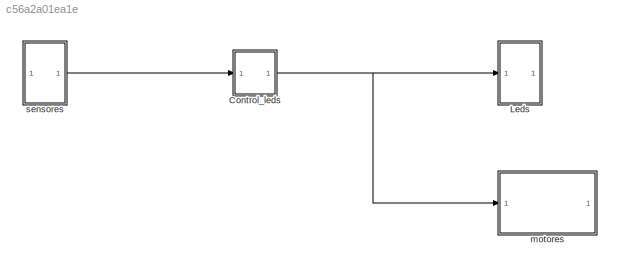
MODEL slx_c56a2a01ea1e
KIND model
CONFIG AbsTol = auto
CONFIG EnableMultiTasking = off
CONFIG FixedStep = auto
CONFIG MaxStep = auto
CONFIG MinStep = auto
CONFIG RelTol = 1e-3
CONFIG SampleTimeConstraint = Unconstrained
CONFIG SolverName = VariableStepAuto
CONFIG StartTime = 0.0
CONFIG StopTime = 10.0
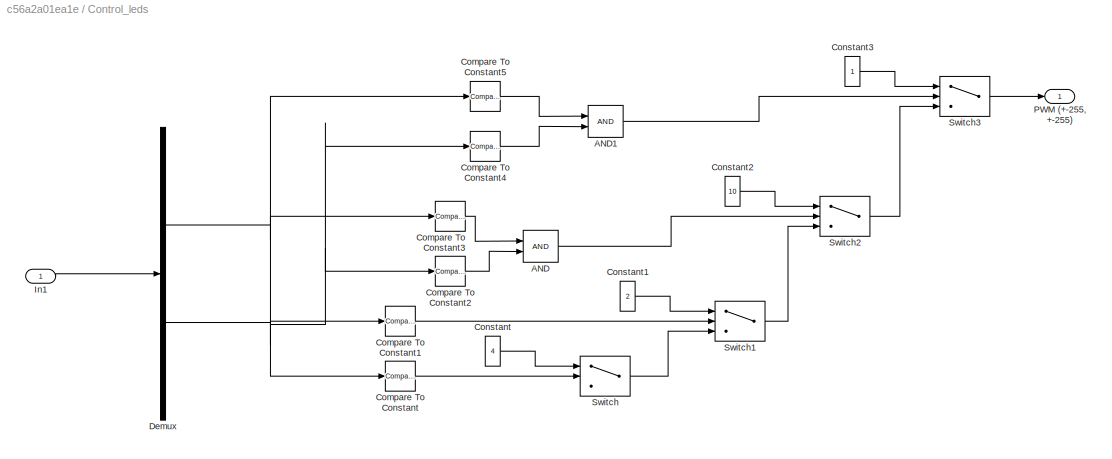
BLOCK [SubSystem] Control_leds
BLOCK [Logic] Control_leds/AND
  AllPortsSameDT = off
  IconShape = distinctive
  OutDataTypeStr = boolean
BLOCK [Logic] Control_leds/AND1
  AllPortsSameDT = off
  IconShape = distinctive
  OutDataTypeStr = boolean
BLOCK [Reference] Control_leds/Compare To Constant  REF=simulink/Logic and Bit
Operations/Compare
To Constant
  SourceBlock = simulink/Logic and Bit\nOperations/Compare\nTo Constant
  SourceType = Compare To Constant
BLOCK [Reference] Control_leds/Compare To Constant1  REF=simulink/Logic and Bit
Operations/Compare
To Constant
  SourceBlock = simulink/Logic and Bit\nOperations/Compare\nTo Constant
  SourceType = Compare To Constant
BLOCK [Reference] Control_leds/Compare To Constant2  REF=simulink/Logic and Bit
Operations/Compare
To Constant
  SourceBlock = simulink/Logic and Bit\nOperations/Compare\nTo Constant
  SourceType = Compare To Constant
BLOCK [Reference] Control_leds/Compare To Constant3  REF=simulink/Logic and Bit
Operations/Compare
To Constant
  SourceBlock = simulink/Logic and Bit\nOperations/Compare\nTo Constant
  SourceType = Compare To Constant
BLOCK [Reference] Control_leds/Compare To Constant4  REF=simulink/Logic and Bit
Operations/Compare
To Constant
  SourceBlock = simulink/Logic and Bit\nOperations/Compare\nTo Constant
  SourceType = Compare To Constant
BLOCK [Reference] Control_leds/Compare To Constant5  REF=simulink/Logic and Bit
Operations/Compare
To Constant
  SourceBlock = simulink/Logic and Bit\nOperations/Compare\nTo Constant
  SourceType = Compare To Constant
BLOCK [Constant] Control_leds/Constant
  SampleTime = -1
  Value = 4
BLOCK [Constant] Control_leds/Constant1
  SampleTime = -1
  Value = 2
BLOCK [Constant] Control_leds/Constant2
  SampleTime = -1
  Value = 10
BLOCK [Constant] Control_leds/Constant3
  SampleTime = -1
BLOCK [Demux] Control_leds/Demux
  Outputs = 2
BLOCK [Inport] Control_leds/In1
BLOCK [Outport] Control_leds/PWM (+-255, +-255)
BLOCK [Switch] Control_leds/Switch
  InputSameDT = off
  SaturateOnIntegerOverflow = off
  Threshold = 1
BLOCK [Switch] Control_leds/Switch1
  InputSameDT = off
  SaturateOnIntegerOverflow = off
  Threshold = 1
BLOCK [Switch] Control_leds/Switch2
  InputSameDT = off
  SaturateOnIntegerOverflow = off
  Threshold = 1
BLOCK [Switch] Control_leds/Switch3
  InputSameDT = off
  SaturateOnIntegerOverflow = off
  Threshold = 1
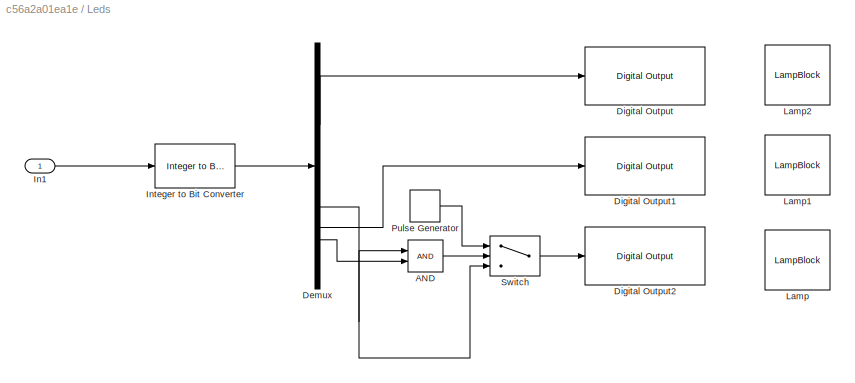
BLOCK [SubSystem] Leds
BLOCK [Logic] Leds/AND
  AllPortsSameDT = off
  IconShape = distinctive
  OutDataTypeStr = boolean
BLOCK [Demux] Leds/Demux
BLOCK [Reference] Leds/Digital Output  REF=arduinolib/Digital Output
  SourceBlock = arduinolib/Digital Output
  SourceType = Arduino Digital Output
BLOCK [Reference] Leds/Digital Output1  REF=arduinolib/Digital Output
  SourceBlock = arduinolib/Digital Output
  SourceType = Arduino Digital Output
BLOCK [Reference] Leds/Digital Output2  REF=arduinolib/Digital Output
  SourceBlock = arduinolib/Digital Output
  SourceType = Arduino Digital Output
BLOCK [Inport] Leds/In1
BLOCK [Reference] Leds/Integer to Bit Converter  REF=simulink/Logic and Bit
Operations/Integer to Bit
Converter
  SourceBlock = simulink/Logic and Bit\nOperations/Integer to Bit\nConverter
  SourceType = Integer to Bit Converter
BLOCK [LampBlock] Leds/Lamp
  LabelPosition = Hide
BLOCK [LampBlock] Leds/Lamp1
  LabelPosition = Hide
BLOCK [LampBlock] Leds/Lamp2
  LabelPosition = Hide
BLOCK [DiscretePulseGenerator] Leds/Pulse Generator
  Period = 10
  PulseType = Time based
  PulseWidth = 5
BLOCK [Switch] Leds/Switch
  InputSameDT = off
  SaturateOnIntegerOverflow = off
  Threshold = 1
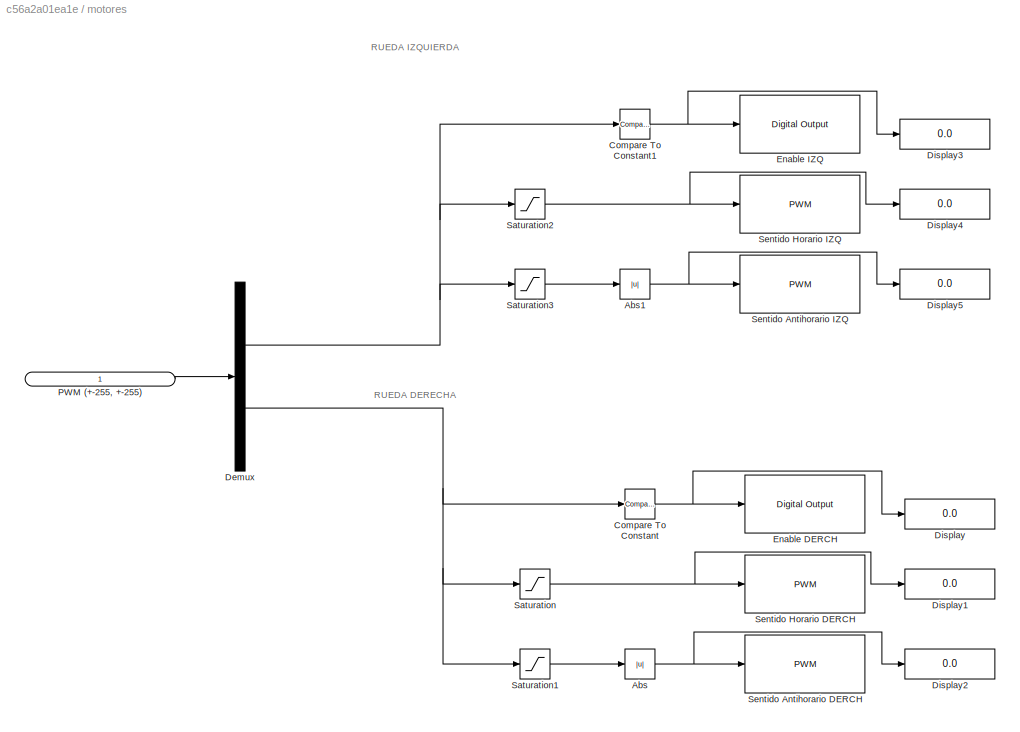
BLOCK [SubSystem] motores
BLOCK [Abs] motores/Abs
  SaturateOnIntegerOverflow = off
BLOCK [Abs] motores/Abs1
  SaturateOnIntegerOverflow = off
BLOCK [Reference] motores/Compare To Constant  REF=simulink/Logic and Bit
Operations/Compare
To Constant
  SourceBlock = simulink/Logic and Bit\nOperations/Compare\nTo Constant
  SourceType = Compare To Constant
BLOCK [Reference] motores/Compare To Constant1  REF=simulink/Logic and Bit
Operations/Compare
To Constant
  SourceBlock = simulink/Logic and Bit\nOperations/Compare\nTo Constant
  SourceType = Compare To Constant
BLOCK [Demux] motores/Demux
  Outputs = 2
BLOCK [Display] motores/Display
  Decimation = 1
BLOCK [Display] motores/Display1
  Decimation = 1
BLOCK [Display] motores/Display2
  Decimation = 1
BLOCK [Display] motores/Display3
  Decimation = 1
BLOCK [Display] motores/Display4
  Decimation = 1
BLOCK [Display] motores/Display5
  Decimation = 1
BLOCK [Reference] motores/Enable DERCH  REF=arduinolib/Digital Output
  SourceBlock = arduinolib/Digital Output
  SourceType = Arduino Digital Output
BLOCK [Reference] motores/Enable IZQ  REF=arduinolib/Digital Output
  SourceBlock = arduinolib/Digital Output
  SourceType = Arduino Digital Output
BLOCK [Inport] motores/PWM (+-255, +-255)
BLOCK [Saturate] motores/Saturation
  LowerLimit = 0
  UpperLimit = 255
BLOCK [Saturate] motores/Saturation1
  LowerLimit = -255
  UpperLimit = 0
BLOCK [Saturate] motores/Saturation2
  LowerLimit = 0
  UpperLimit = 255
BLOCK [Saturate] motores/Saturation3
  LowerLimit = -255
  UpperLimit = 0
BLOCK [Reference] motores/Sentido Antihorario DERCH  REF=arduinolib/PWM
  SourceBlock = arduinolib/PWM
  SourceType = Arduino PWM
BLOCK [Reference] motores/Sentido Antihorario IZQ  REF=arduinolib/PWM
  SourceBlock = arduinolib/PWM
  SourceType = Arduino PWM
BLOCK [Reference] motores/Sentido Horario DERCH  REF=arduinolib/PWM
  SourceBlock = arduinolib/PWM
  SourceType = Arduino PWM
BLOCK [Reference] motores/Sentido Horario IZQ  REF=arduinolib/PWM
  SourceBlock = arduinolib/PWM
  SourceType = Arduino PWM
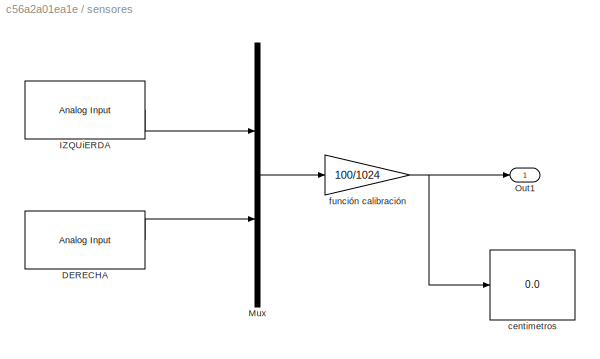
BLOCK [SubSystem] sensores
BLOCK [Reference] sensores/DERECHA  REF=arduinolib/Analog Input
  SourceBlock = arduinolib/Analog Input
  SourceType = Arduino Analog Input
BLOCK [Reference] sensores/IZQUiERDA  REF=arduinolib/Analog Input
  SourceBlock = arduinolib/Analog Input
  SourceType = Arduino Analog Input
BLOCK [Mux] sensores/Mux
  DisplayOption = bar
  Inputs = 2
BLOCK [Outport] sensores/Out1
BLOCK [Display] sensores/centimetros
  Decimation = 1
BLOCK [Gain] sensores/función calibración
  Gain = 100/1024
ANNOTATION motores: RUEDA DERECHA
ANNOTATION motores: RUEDA IZQUIERDA
LINE Control_leds/AND1:1 -> Control_leds/Switch3:2
LINE Control_leds/AND:1 -> Control_leds/Switch2:2
LINE Control_leds/Compare To Constant1:1 -> Control_leds/Switch1:2
LINE Control_leds/Compare To Constant2:1 -> Control_leds/AND:2
LINE Control_leds/Compare To Constant3:1 -> Control_leds/AND:1
LINE Control_leds/Compare To Constant4:1 -> Control_leds/AND1:2
LINE Control_leds/Compare To Constant5:1 -> Control_leds/AND1:1
LINE Control_leds/Compare To Constant:1 -> Control_leds/Switch:2
LINE Control_leds/Constant1:1 -> Control_leds/Switch1:1
LINE Control_leds/Constant2:1 -> Control_leds/Switch2:1
LINE Control_leds/Constant3:1 -> Control_leds/Switch3:1
LINE Control_leds/Constant:1 -> Control_leds/Switch:1
NET Control_leds/Demux:1 -> Control_leds/Compare To Constant1:1, Control_leds/Compare To Constant3:1, Control_leds/Compare To Constant5:1
NET Control_leds/Demux:2 -> Control_leds/Compare To Constant2:1, Control_leds/Compare To Constant4:1, Control_leds/Compare To Constant:1
LINE Control_leds/In1:1 -> Control_leds/Demux:1
LINE Control_leds/Switch1:1 -> Control_leds/Switch2:3
LINE Control_leds/Switch2:1 -> Control_leds/Switch3:3
LINE Control_leds/Switch3:1 -> Control_leds/PWM (+-255, +-255):1
LINE Control_leds/Switch:1 -> Control_leds/Switch1:3
NET Control_leds:1 -> Leds:1, motores:1
LINE Leds/AND:1 -> Leds/Switch:2
LINE Leds/Demux:1 -> Leds/Digital Output:1
NET Leds/Demux:2 -> Leds/AND:1, Leds/Switch:3
LINE Leds/Demux:3 -> Leds/Digital Output1:1
LINE Leds/Demux:4 -> Leds/AND:2
LINE Leds/In1:1 -> Leds/Integer to Bit Converter:1
LINE Leds/Integer to Bit Converter:1 -> Leds/Demux:1
LINE Leds/Pulse Generator:1 -> Leds/Switch:1
LINE Leds/Switch:1 -> Leds/Digital Output2:1
NET motores/Abs1:1 -> motores/Display5:1, motores/Sentido Antihorario IZQ:1
NET motores/Abs:1 -> motores/Display2:1, motores/Sentido Antihorario DERCH:1
NET motores/Compare To Constant1:1 -> motores/Display3:1, motores/Enable IZQ:1
NET motores/Compare To Constant:1 -> motores/Display:1, motores/Enable DERCH:1
NET motores/Demux:1 -> motores/Compare To Constant1:1, motores/Saturation2:1, motores/Saturation3:1
NET motores/Demux:2 -> motores/Compare To Constant:1, motores/Saturation1:1, motores/Saturation:1
LINE motores/PWM (+-255, +-255):1 -> motores/Demux:1
LINE motores/Saturation1:1 -> motores/Abs:1
NET motores/Saturation2:1 -> motores/Display4:1, motores/Sentido Horario IZQ:1
LINE motores/Saturation3:1 -> motores/Abs1:1
NET motores/Saturation:1 -> motores/Display1:1, motores/Sentido Horario DERCH:1
LINE sensores/DERECHA:1 -> sensores/Mux:2
LINE sensores/IZQUiERDA:1 -> sensores/Mux:1
LINE sensores/Mux:1 -> sensores/función calibración:1
NET sensores/función calibración:1 -> sensores/Out1:1, sensores/centimetros:1
LINE sensores:1 -> Control_leds:1
note: NET lines group one-source signal fan-out (src -> all destinations, sorted); 1:1 wires keep LINE
